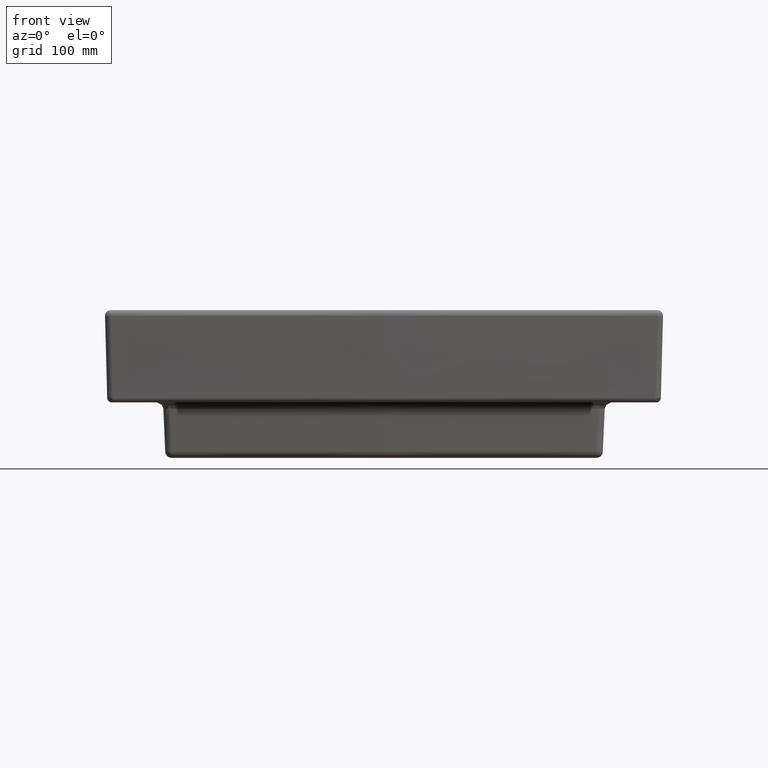
[diagram: clean part render]
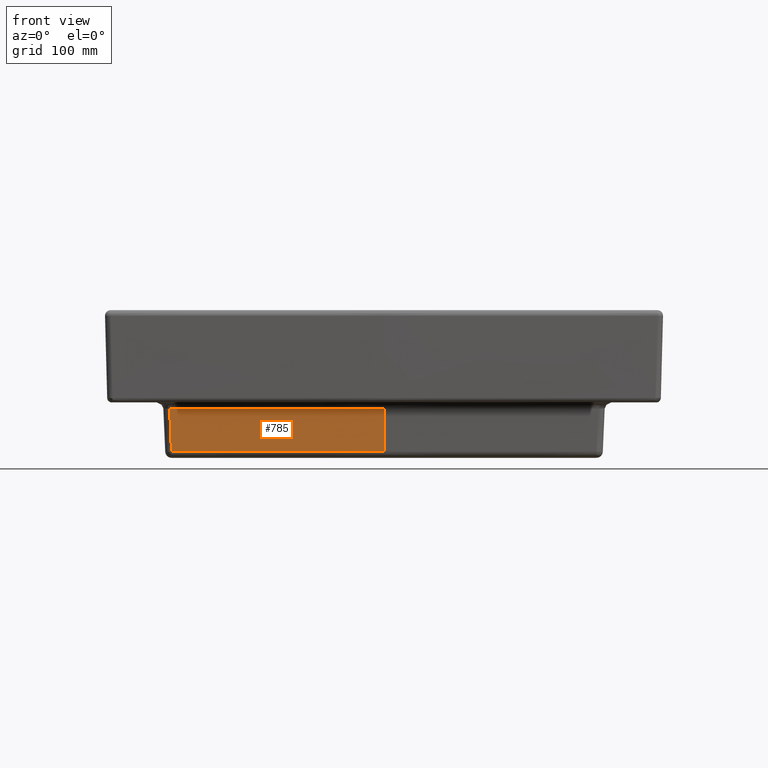
[diagram: same view with one face highlighted and labeled with its STEP entity id]
A machine part, front view. The second image highlights one B-rep face of the part: STEP entity #785.
In plain terms, the highlighted face is a freeform B-spline surface patch.
Its self-contained STEP definition (entity closure, byte-faithful):
#135=B_SPLINE_SURFACE_WITH_KNOTS('',1,3,((#17064,#17065,#17066,#17067,#17068,
#17069,#17070),(#17071,#17072,#17073,#17074,#17075,#17076,#17077)),
 .UNSPECIFIED.,.F.,.F.,.F.,(2,2),(4,3,4),(0.,1.),(0.,0.99009900990099,1.),
 .UNSPECIFIED.);
#785=ADVANCED_FACE('',(#1137),#135,.T.);
#1137=FACE_OUTER_BOUND('',#1479,.T.);
#1479=EDGE_LOOP('',(#2655,#2656,#2657,#2658));
#2655=ORIENTED_EDGE('',*,*,#4322,.F.);
#2656=ORIENTED_EDGE('',*,*,#4323,.F.);
#2657=ORIENTED_EDGE('',*,*,#4053,.T.);
#2658=ORIENTED_EDGE('',*,*,#4324,.F.);
#3577=VERTEX_POINT('',#7990);
#3578=VERTEX_POINT('',#7993);
#3717=VERTEX_POINT('',#17054);
#3718=VERTEX_POINT('',#17055);
#4053=EDGE_CURVE('',#3578,#3577,#4731,.T.);
#4322=EDGE_CURVE('',#3717,#3718,#4920,.T.);
#4323=EDGE_CURVE('',#3578,#3717,#4921,.T.);
#4324=EDGE_CURVE('',#3718,#3577,#4922,.T.);
#4731=B_SPLINE_CURVE_WITH_KNOTS('',1,(#7991,#7992),.UNSPECIFIED.,.F.,.F.,
(2,2),(0.,1.),.UNSPECIFIED.);
#4920=B_SPLINE_CURVE_WITH_KNOTS('',3,(#17047,#17048,#17049,#17050,#17051,
#17052,#17053),.UNSPECIFIED.,.F.,.F.,(4,3,4),(0.,0.299555459300787,1.),
 .UNSPECIFIED.);
#4921=B_SPLINE_CURVE_WITH_KNOTS('',3,(#17056,#17057,#17058,#17059),
 .UNSPECIFIED.,.F.,.F.,(4,4),(0.,1.),.UNSPECIFIED.);
#4922=B_SPLINE_CURVE_WITH_KNOTS('',3,(#17060,#17061,#17062,#17063),
 .UNSPECIFIED.,.F.,.F.,(4,4),(0.,1.),.UNSPECIFIED.);
#7990=CARTESIAN_POINT('',(5.53809538300226E-014,-417.388318865661,-105.246761565766));
#7991=CARTESIAN_POINT('',(-0.000245178416360982,-415.351587372235,-151.895590907416));
#7992=CARTESIAN_POINT('',(4.51489889088749E-006,-417.38831886566,-105.24676156579));
#7993=CARTESIAN_POINT('',(2.43302453722693E-014,-415.351587521909,-151.895590915264));
#17047=CARTESIAN_POINT('',(-230.352686241114,-412.982281124108,-151.895552355171));
#17048=CARTESIAN_POINT('',(-230.556250065523,-413.181603768856,-147.237590351195));
#17049=CARTESIAN_POINT('',(-230.759813897089,-413.380921280252,-142.579628127863));
#17050=CARTESIAN_POINT('',(-230.963377735811,-413.580233658591,-137.921665685206));
#17051=CARTESIAN_POINT('',(-231.439366989518,-414.046281807496,-127.030045244224));
#17052=CARTESIAN_POINT('',(-231.915356282356,-414.512301891148,-116.138423604014));
#17053=CARTESIAN_POINT('',(-232.391345614316,-414.978293913349,-105.246800764958));
#17054=CARTESIAN_POINT('',(-230.352686241114,-412.982281124108,-151.895552355171));
#17055=CARTESIAN_POINT('',(-232.391345614316,-414.978293913349,-105.246800764958));
#17056=CARTESIAN_POINT('',(-0.000245178416389026,-415.351587372006,-151.895590912656));
#17057=CARTESIAN_POINT('',(-76.7907319931823,-415.304601767682,-151.895590912878));
#17058=CARTESIAN_POINT('',(-153.577477217906,-414.514680570155,-151.895576611044));
#17059=CARTESIAN_POINT('',(-230.352686241114,-412.982281124108,-151.895552355171));
#17060=CARTESIAN_POINT('',(-232.391345614316,-414.978293913349,-105.246800764958));
#17061=CARTESIAN_POINT('',(-154.936763343403,-416.537419419805,-105.246776093983));
#17062=CARTESIAN_POINT('',(-77.4702545927588,-417.34091733227,-105.246761565469));
#17063=CARTESIAN_POINT('',(4.51489889140374E-006,-417.388318865664,-105.246761565693));
#17064=CARTESIAN_POINT('',(-432.649143877253,-410.044626578254,-87.3244565920603));
#17065=CARTESIAN_POINT('',(-288.528854385333,-415.205514740592,-91.1373511503729));
#17066=CARTESIAN_POINT('',(-144.266304042072,-417.832804820378,-93.0445981891979));
#17067=CARTESIAN_POINT('',(6.9828405298432E-005,-417.92107672047,-93.0445982812926));
#17068=CARTESIAN_POINT('',(1.44273356711007,-417.921959439471,-93.0445982822136));
#17069=CARTESIAN_POINT('',(2.88539730581484,-417.922842158472,-93.0445982831345));
#17070=CARTESIAN_POINT('',(4.3280610445196,-417.923724877473,-93.0445982840555));
#17071=CARTESIAN_POINT('',(-432.594020646538,-406.217888296641,-174.995104413533));
#17072=CARTESIAN_POINT('',(-288.492248613878,-411.37809276709,-178.807980775438));
#17073=CARTESIAN_POINT('',(-144.24823552931,-414.005034930424,-180.715218400838));
#17074=CARTESIAN_POINT('',(-0.000399438840467764,-414.093295518876,-180.715217902325));
#17075=CARTESIAN_POINT('',(1.44207892206423,-414.094178124761,-180.71521789734));
#17076=CARTESIAN_POINT('',(2.88455728296892,-414.095060730645,-180.715217892355));
#17077=CARTESIAN_POINT('',(4.32703564387362,-414.09594333653,-180.71521788737));